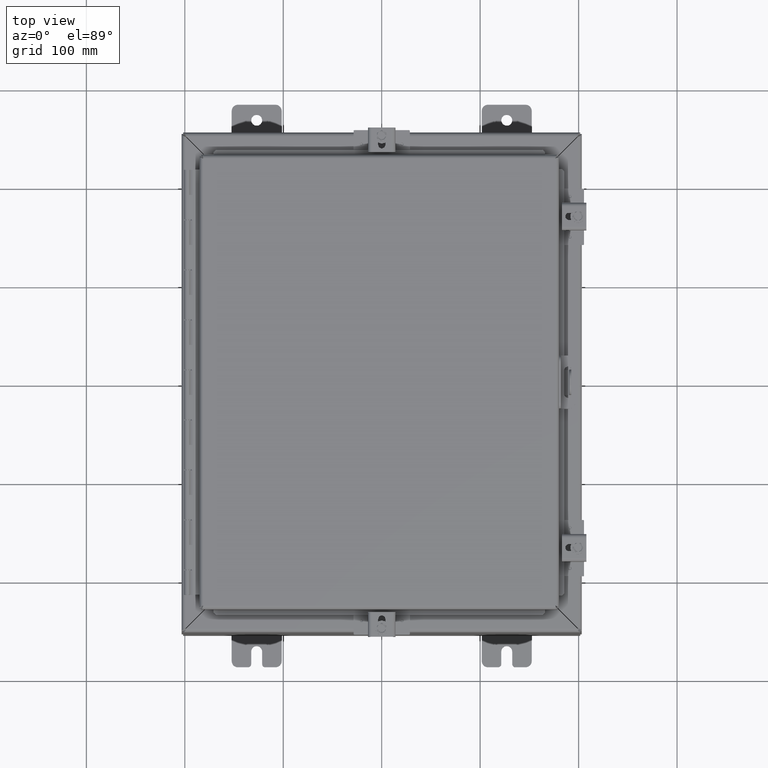
[diagram: clean part render]
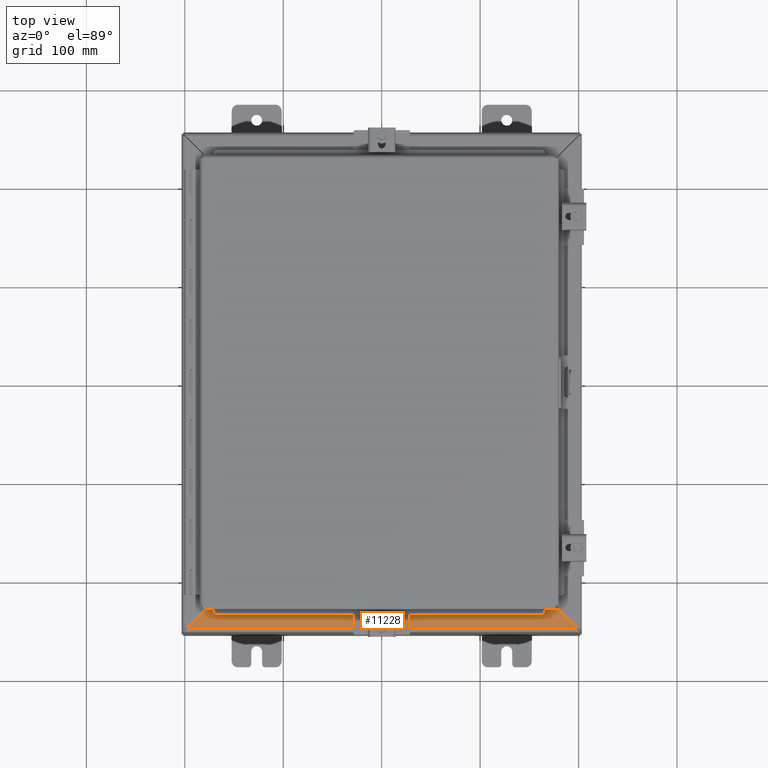
[diagram: same view with one face highlighted and labeled with its STEP entity id]
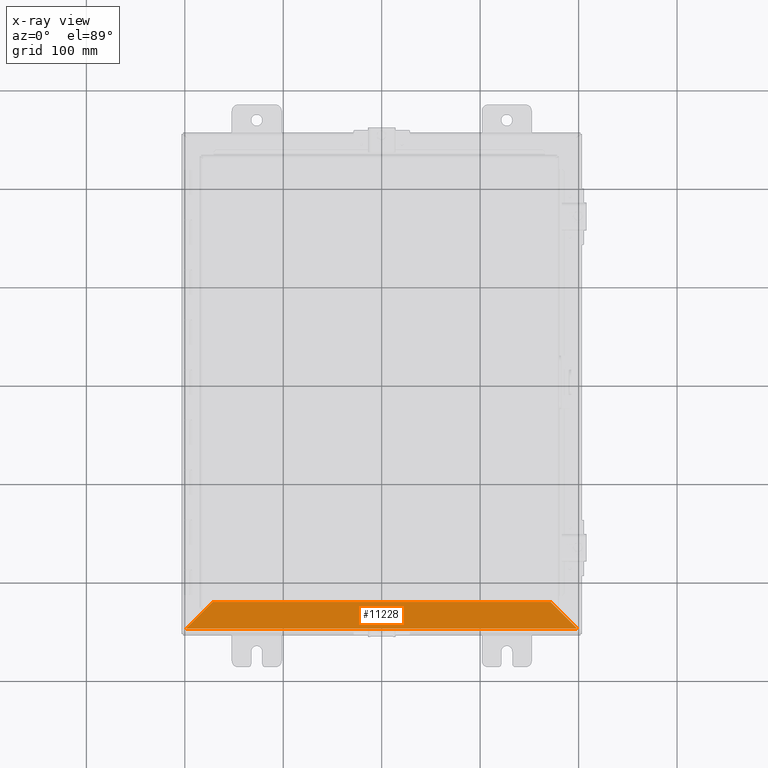
[diagram: x-ray of the same camera — body ghosted, the highlighted face saturated]
A machine part, top view. The second image highlights one B-rep face of the part: STEP entity #11228.
The next image is the same camera in x-ray: the body ghosted, the highlighted face saturated — about 0% of this face is hidden behind the body in this view.
In plain terms, the highlighted planar face has unit normal (0, 0, -1).
Its self-contained STEP definition (entity closure, byte-faithful):
#1144=PLANE('',#11947);
#1524=FACE_OUTER_BOUND('',#2188,.T.);
#2188=EDGE_LOOP('',(#8172,#8173,#8174,#8175));
#2949=LINE('',#16482,#3954);
#2951=LINE('',#16517,#3956);
#2952=LINE('',#16518,#3957);
#2953=LINE('',#16519,#3958);
#3954=VECTOR('',#13181,13.5137806999098);
#3956=VECTOR('',#13185,15.6527806999098);
#3957=VECTOR('',#13186,1.51250140495802);
#3958=VECTOR('',#13187,1.51250140495802);
#5349=VERTEX_POINT('',#16480);
#5350=VERTEX_POINT('',#16481);
#5357=VERTEX_POINT('',#16515);
#5358=VERTEX_POINT('',#16516);
#6441=EDGE_CURVE('',#5349,#5350,#2949,.T.);
#6449=EDGE_CURVE('',#5357,#5358,#2951,.T.);
#6450=EDGE_CURVE('',#5349,#5358,#2952,.T.);
#6451=EDGE_CURVE('',#5357,#5350,#2953,.T.);
#8172=ORIENTED_EDGE('',*,*,#6449,.T.);
#8173=ORIENTED_EDGE('',*,*,#6450,.F.);
#8174=ORIENTED_EDGE('',*,*,#6441,.T.);
#8175=ORIENTED_EDGE('',*,*,#6451,.F.);
#11228=ADVANCED_FACE('',(#1524),#1144,.F.);
#11947=AXIS2_PLACEMENT_3D('',#16514,#13183,#13184);
#13181=DIRECTION('',(-1.,-4.04856433016873E-16,-1.03850319183483E-16));
#13183=DIRECTION('center_axis',(1.03850319183479E-16,1.03808310353771E-14,
-1.));
#13184=DIRECTION('ref_axis',(-1.84712005841023E-16,1.,9.02389274415329E-15));
#13185=DIRECTION('',(1.,2.72131141638277E-16,1.03850319183482E-16));
#13186=DIRECTION('',(0.707106781186547,-0.707106781186548,-7.72520068165745E-15));
#13187=DIRECTION('',(0.707106781186548,0.707106781186547,7.61274602742749E-15));
#16480=CARTESIAN_POINT('',(6.75689034995492,-8.77775000000004,8.00000000000001));
#16481=CARTESIAN_POINT('',(-6.75689034995492,-8.77775000000005,8.00000000000001));
#16482=CARTESIAN_POINT('',(-3.37844517497746,-8.77775000000005,8.00000000000001));
#16514=CARTESIAN_POINT('Origin',(3.11130744489551E-16,-9.37933942991966,
8.00000000000001));
#16515=CARTESIAN_POINT('',(-7.82639034995492,-9.84725000000005,8.));
#16516=CARTESIAN_POINT('',(7.82639034995492,-9.84725000000005,8.));
#16517=CARTESIAN_POINT('',(8.96329097644206E-16,-9.84725000000005,8.));
#16518=CARTESIAN_POINT('',(7.82639034995492,-9.84725000000004,8.));
#16519=CARTESIAN_POINT('',(-7.82639034995492,-9.84725000000005,8.));